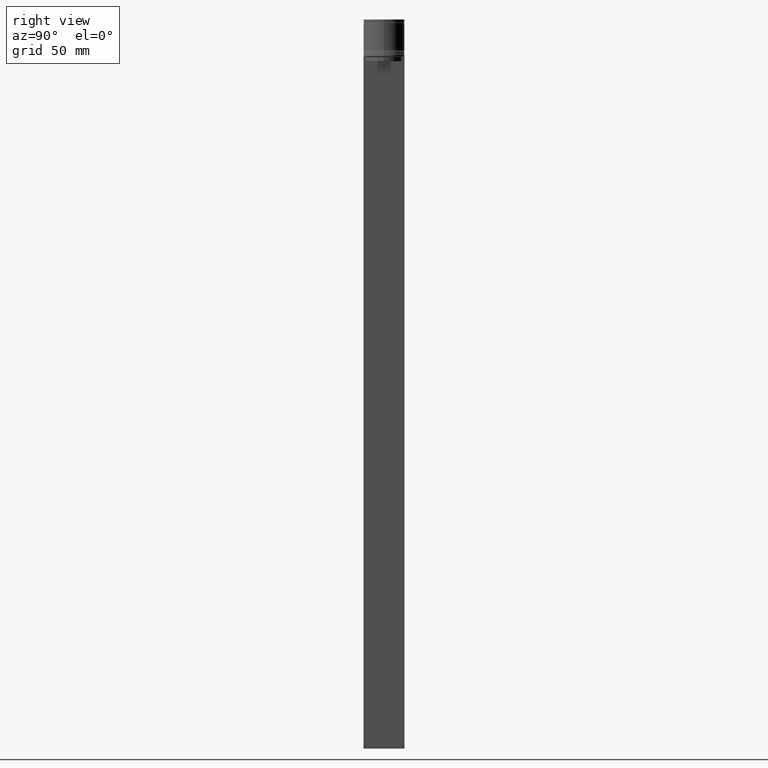
[diagram: clean part render]
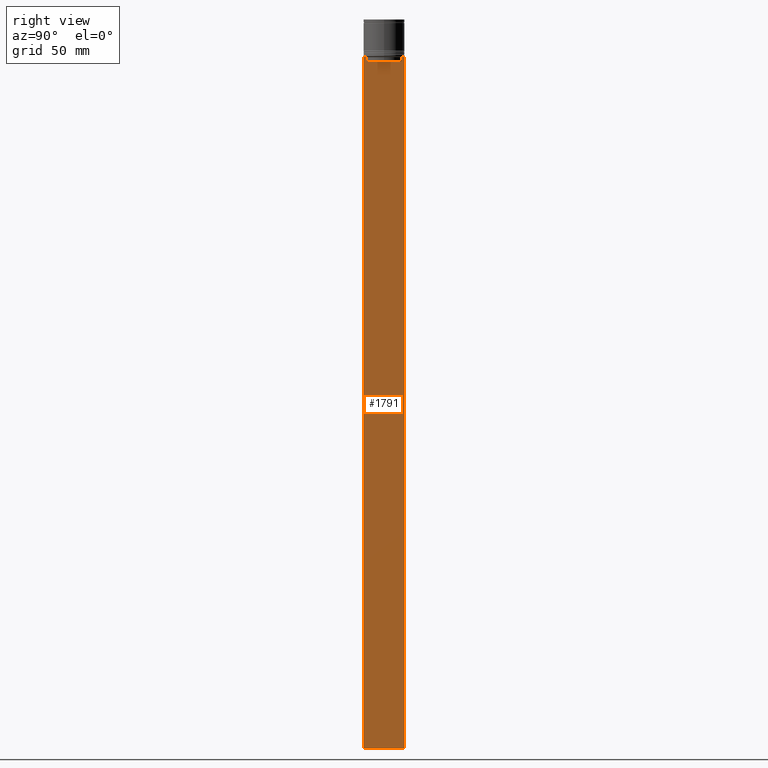
[diagram: same view with one face highlighted and labeled with its STEP entity id]
A machine part, right view. The second image highlights one B-rep face of the part: STEP entity #1791.
In plain terms, the highlighted planar face has unit normal (-1, 0, 0).
Its self-contained STEP definition (entity closure, byte-faithful):
#8 = EDGE_LOOP ( 'NONE', ( #1484, #719, #1014, #397, #1301, #979, #1415, #2070, #787, #892, #1478, #2044 ) ) ;
#22 = CARTESIAN_POINT ( 'NONE',  ( 0.5000000000000000000, 10.88852607105297032, -22.99999999999999645 ) ) ;
#87 = EDGE_CURVE ( 'NONE', #148, #136, #285, .T. ) ;
#97 = VECTOR ( 'NONE', #1419, 1000.000000000000000 ) ;
#136 = VERTEX_POINT ( 'NONE', #1431 ) ;
#148 = VERTEX_POINT ( 'NONE', #753 ) ;
#189 = CARTESIAN_POINT ( 'NONE',  ( 0.5000000000000000000, -12.49999999999999289, -444.5000000000000000 ) ) ;
#224 = CARTESIAN_POINT ( 'NONE',  ( 0.5000000000000000000, -12.49999999999999289, 2.519992006393609874 ) ) ;
#253 = CARTESIAN_POINT ( 'NONE',  ( 0.5000000000000000000, -11.05536450423839412, -22.83333718996392747 ) ) ;
#258 = EDGE_CURVE ( 'NONE', #1016, #687, #1173, .T. ) ;
#285 = LINE ( 'NONE', #417, #97 ) ;
#297 = EDGE_CURVE ( 'NONE', #2046, #1199, #650, .T. ) ;
#324 = CARTESIAN_POINT ( 'NONE',  ( 0.5000000000000000000, 10.88852607105297032, -22.99999999999999645 ) ) ;
#343 = CARTESIAN_POINT ( 'NONE',  ( 0.5000000000000000000, 10.90000000000000924, -25.50000000000000000 ) ) ;
#397 = ORIENTED_EDGE ( 'NONE', *, *, #1670, .T. ) ;
#412 = LINE ( 'NONE', #1071, #1082 ) ;
#417 = CARTESIAN_POINT ( 'NONE',  ( 0.5000000000000000000, -12.49999999999999289, -22.50000000000000000 ) ) ;
#469 = CARTESIAN_POINT ( 'NONE',  ( 0.5000000000000000000, -10.88852607105296855, -25.50000000000000000 ) ) ;
#494 = CARTESIAN_POINT ( 'NONE',  ( 0.5000000000000000000, 10.88852607105297032, 0.000000000000000000 ) ) ;
#499 = VECTOR ( 'NONE', #1440, 1000.000000000000000 ) ;
#509 = CARTESIAN_POINT ( 'NONE',  ( 0.5000000000000000000, 12.50000000000000711, -444.5000000000000000 ) ) ;
#637 = EDGE_CURVE ( 'NONE', #687, #1643, #1650, .T. ) ;
#644 = DIRECTION ( 'NONE',  ( 0.000000000000000000, 0.000000000000000000, -1.000000000000000000 ) ) ;
#650 = LINE ( 'NONE', #682, #1659 ) ;
#665 = VERTEX_POINT ( 'NONE', #1449 ) ;
#682 = CARTESIAN_POINT ( 'NONE',  ( 0.5000000000000000000, 12.50000000000000711, 2.519992006393609874 ) ) ;
#687 = VERTEX_POINT ( 'NONE', #1613 ) ;
#716 = DIRECTION ( 'NONE',  ( 0.000000000000000000, 0.000000000000000000, -1.000000000000000000 ) ) ;
#719 = ORIENTED_EDGE ( 'NONE', *, *, #637, .T. ) ;
#726 = EDGE_CURVE ( 'NONE', #1262, #1199, #996, .T. ) ;
#753 = CARTESIAN_POINT ( 'NONE',  ( 0.5000000000000000000, -11.38902980942626897, -22.50000000000000000 ) ) ;
#787 = ORIENTED_EDGE ( 'NONE', *, *, #1341, .T. ) ;
#805 = CARTESIAN_POINT ( 'NONE',  ( 0.5000000000000000000, -12.49999999999999289, -22.50000000000000000 ) ) ;
#854 = B_SPLINE_CURVE_WITH_KNOTS ( 'NONE', 3,
 ( #1710, #253, #1835, #1693 ),
 .UNSPECIFIED., .F., .F.,
 ( 4, 4 ),
 ( 0.05041323384703231408, 0.05112713601261610619 ),
 .UNSPECIFIED. ) ;
#871 = DIRECTION ( 'NONE',  ( -1.000000000000000000, 0.000000000000000000, 0.000000000000000000 ) ) ;
#892 = ORIENTED_EDGE ( 'NONE', *, *, #726, .T. ) ;
#909 = VECTOR ( 'NONE', #716, 1000.000000000000000 ) ;
#929 = VERTEX_POINT ( 'NONE', #1867 ) ;
#979 = ORIENTED_EDGE ( 'NONE', *, *, #1749, .T. ) ;
#996 = LINE ( 'NONE', #189, #499 ) ;
#1014 = ORIENTED_EDGE ( 'NONE', *, *, #1655, .T. ) ;
#1016 = VERTEX_POINT ( 'NONE', #1910 ) ;
#1025 = VECTOR ( 'NONE', #1913, 1000.000000000000000 ) ;
#1032 = VERTEX_POINT ( 'NONE', #1426 ) ;
#1051 = VECTOR ( 'NONE', #1300, 1000.000000000000000 ) ;
#1071 = CARTESIAN_POINT ( 'NONE',  ( 0.5000000000000000000, -12.49999999999999289, -22.50000000000000000 ) ) ;
#1082 = VECTOR ( 'NONE', #1837, 1000.000000000000000 ) ;
#1124 = LINE ( 'NONE', #1757, #1025 ) ;
#1165 = LINE ( 'NONE', #343, #1219 ) ;
#1173 = LINE ( 'NONE', #805, #1987 ) ;
#1199 = VERTEX_POINT ( 'NONE', #509 ) ;
#1219 = VECTOR ( 'NONE', #1640, 1000.000000000000000 ) ;
#1226 = CARTESIAN_POINT ( 'NONE',  ( 0.5000000000000000000, 11.38902980942626897, -22.50000000000000000 ) ) ;
#1262 = VERTEX_POINT ( 'NONE', #1858 ) ;
#1287 = AXIS2_PLACEMENT_3D ( 'NONE', #224, #871, #1533 ) ;
#1300 = DIRECTION ( 'NONE',  ( 0.000000000000000000, -1.000000000000000000, 0.000000000000000000 ) ) ;
#1301 = ORIENTED_EDGE ( 'NONE', *, *, #1839, .T. ) ;
#1314 = LINE ( 'NONE', #494, #1849 ) ;
#1327 = DIRECTION ( 'NONE',  ( 0.000000000000000000, 0.000000000000000000, -1.000000000000000000 ) ) ;
#1332 = EDGE_CURVE ( 'NONE', #136, #1032, #412, .T. ) ;
#1341 = EDGE_CURVE ( 'NONE', #1032, #1262, #1829, .T. ) ;
#1415 = ORIENTED_EDGE ( 'NONE', *, *, #87, .T. ) ;
#1419 = DIRECTION ( 'NONE',  ( 0.000000000000000000, -1.000000000000000000, 0.000000000000000000 ) ) ;
#1426 = CARTESIAN_POINT ( 'NONE',  ( 0.5000000000000000000, -12.49999999999999289, -22.50000000000000000 ) ) ;
#1431 = CARTESIAN_POINT ( 'NONE',  ( 0.5000000000000000000, -12.38991525394746596, -22.50000000000000000 ) ) ;
#1440 = DIRECTION ( 'NONE',  ( 0.000000000000000000, 1.000000000000000000, 0.000000000000000000 ) ) ;
#1449 = CARTESIAN_POINT ( 'NONE',  ( 0.5000000000000000000, 10.88852607105296855, -25.50000000000000000 ) ) ;
#1451 = DIRECTION ( 'NONE',  ( 0.000000000000000000, -1.000000000000000000, 0.000000000000000000 ) ) ;
#1478 = ORIENTED_EDGE ( 'NONE', *, *, #297, .F. ) ;
#1484 = ORIENTED_EDGE ( 'NONE', *, *, #258, .T. ) ;
#1500 = LINE ( 'NONE', #1632, #1051 ) ;
#1533 = DIRECTION ( 'NONE',  ( 0.000000000000000000, 0.000000000000000000, 1.000000000000000000 ) ) ;
#1561 = CARTESIAN_POINT ( 'NONE',  ( 0.5000000000000000000, -12.49999999999999289, 2.519992006393609874 ) ) ;
#1584 = EDGE_CURVE ( 'NONE', #2046, #1016, #1500, .T. ) ;
#1613 = CARTESIAN_POINT ( 'NONE',  ( 0.5000000000000000000, 11.38902980942626897, -22.50000000000000000 ) ) ;
#1632 = CARTESIAN_POINT ( 'NONE',  ( 0.5000000000000000000, -12.49999999999999289, -22.50000000000000000 ) ) ;
#1640 = DIRECTION ( 'NONE',  ( 0.000000000000000000, -1.000000000000000000, 0.000000000000000000 ) ) ;
#1643 = VERTEX_POINT ( 'NONE', #22 ) ;
#1645 = CARTESIAN_POINT ( 'NONE',  ( 0.5000000000000000000, 11.05536450345590715, -22.83333719074559554 ) ) ;
#1650 = B_SPLINE_CURVE_WITH_KNOTS ( 'NONE', 3,
 ( #1226, #1860, #1645, #324 ),
 .UNSPECIFIED., .F., .F.,
 ( 4, 4 ),
 ( 0.01935560801904635808, 0.02006307108468587813 ),
 .UNSPECIFIED. ) ;
#1655 = EDGE_CURVE ( 'NONE', #1643, #665, #1314, .T. ) ;
#1659 = VECTOR ( 'NONE', #1327, 1000.000000000000000 ) ;
#1670 = EDGE_CURVE ( 'NONE', #665, #2010, #1165, .T. ) ;
#1693 = CARTESIAN_POINT ( 'NONE',  ( 0.5000000000000000000, -11.38902980942626897, -22.50000000000000000 ) ) ;
#1703 = FACE_OUTER_BOUND ( 'NONE', #8, .T. ) ;
#1710 = CARTESIAN_POINT ( 'NONE',  ( 0.5000000000000000000, -10.88852607105297032, -22.99999999999999645 ) ) ;
#1749 = EDGE_CURVE ( 'NONE', #929, #148, #854, .T. ) ;
#1757 = CARTESIAN_POINT ( 'NONE',  ( 0.5000000000000000000, -10.88852607105297032, 0.000000000000000000 ) ) ;
#1791 = ADVANCED_FACE ( 'NONE', ( #1703 ), #2009, .F. ) ;
#1793 = CARTESIAN_POINT ( 'NONE',  ( 0.5000000000000000000, 12.50000000000000711, -22.50000000000000000 ) ) ;
#1829 = LINE ( 'NONE', #1561, #909 ) ;
#1835 = CARTESIAN_POINT ( 'NONE',  ( 0.5000000000000000000, -11.22219891450653151, -22.66667035398018726 ) ) ;
#1837 = DIRECTION ( 'NONE',  ( 0.000000000000000000, -1.000000000000000000, 0.000000000000000000 ) ) ;
#1839 = EDGE_CURVE ( 'NONE', #2010, #929, #1124, .T. ) ;
#1849 = VECTOR ( 'NONE', #644, 1000.000000000000000 ) ;
#1858 = CARTESIAN_POINT ( 'NONE',  ( 0.5000000000000000000, -12.49999999999999289, -444.5000000000000000 ) ) ;
#1860 = CARTESIAN_POINT ( 'NONE',  ( 0.5000000000000000000, 11.22219891375843126, -22.66667035472756808 ) ) ;
#1867 = CARTESIAN_POINT ( 'NONE',  ( 0.5000000000000000000, -10.88852607105297032, -22.99999999999999645 ) ) ;
#1910 = CARTESIAN_POINT ( 'NONE',  ( 0.5000000000000000000, 12.38991525394746596, -22.50000000000000000 ) ) ;
#1913 = DIRECTION ( 'NONE',  ( -0.000000000000000000, -0.000000000000000000, 1.000000000000000000 ) ) ;
#1987 = VECTOR ( 'NONE', #1451, 1000.000000000000000 ) ;
#2009 = PLANE ( 'NONE',  #1287 ) ;
#2010 = VERTEX_POINT ( 'NONE', #469 ) ;
#2044 = ORIENTED_EDGE ( 'NONE', *, *, #1584, .T. ) ;
#2046 = VERTEX_POINT ( 'NONE', #1793 ) ;
#2070 = ORIENTED_EDGE ( 'NONE', *, *, #1332, .T. ) ;